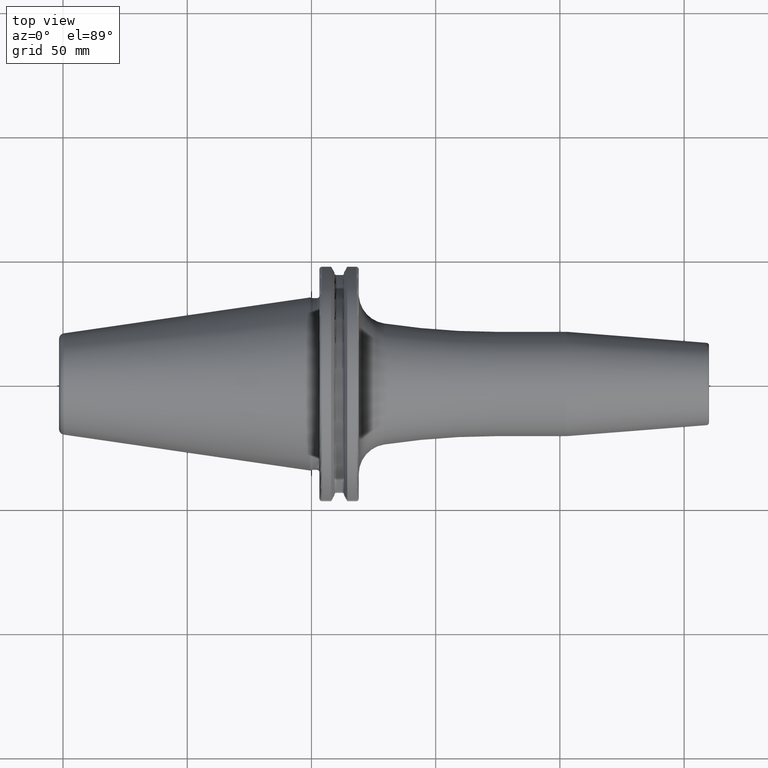
[diagram: clean part render]
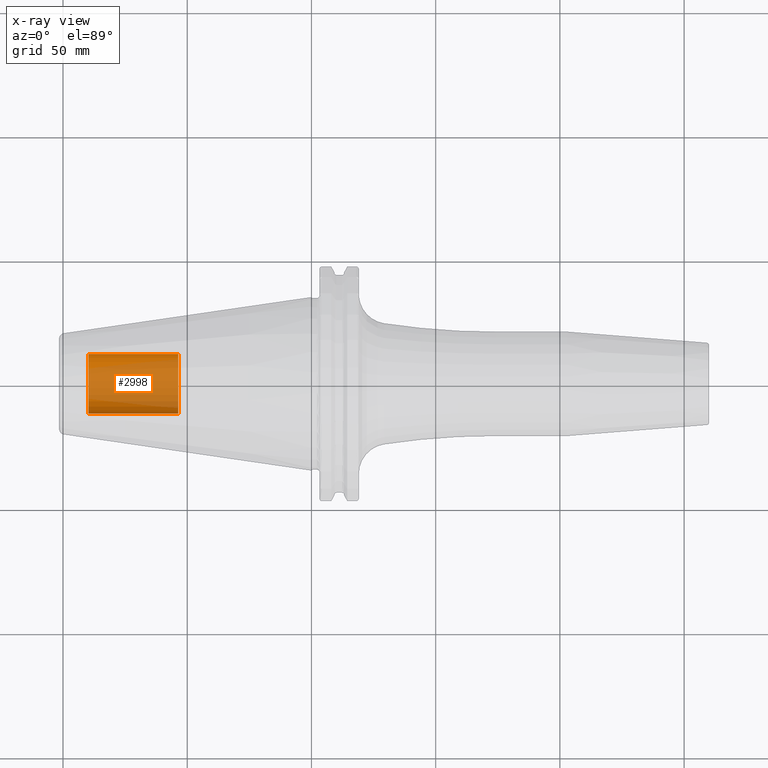
[diagram: x-ray — body ghosted, one internal face saturated and labeled with its STEP entity id]
A machine part, top view, then the same camera in x-ray: the body is ghosted and one INTERNAL B-rep face — a face not visible from any outside direction — is saturated and labeled: STEP entity #2998.
In plain terms, the highlighted cylindrical surface (edge-blend (fillet) strip) has radius 12.0032 mm, axis along (1, 0, 0).
Its self-contained STEP definition (entity closure, byte-faithful):
#2933=CARTESIAN_POINT('',(-8.985E1,0.E0,0.E0));
#2934=DIRECTION('',(-1.E0,0.E0,0.E0));
#2935=DIRECTION('',(0.E0,1.E0,0.E0));
#2936=AXIS2_PLACEMENT_3D('',#2933,#2934,#2935);
#2938=DIRECTION('',(1.E0,0.E0,0.E0));
#2939=VECTOR('',#2938,3.625E1);
#2940=CARTESIAN_POINT('',(-8.985E1,-1.200325E1,0.E0));
#2941=LINE('',#2940,#2939);
#2947=DIRECTION('',(1.E0,0.E0,0.E0));
#2948=VECTOR('',#2947,3.625E1);
#2949=CARTESIAN_POINT('',(-8.985E1,1.200325E1,0.E0));
#2950=LINE('',#2949,#2948);
#2956=CARTESIAN_POINT('',(-5.36E1,0.E0,0.E0));
#2957=DIRECTION('',(1.E0,0.E0,0.E0));
#2958=DIRECTION('',(0.E0,-1.E0,0.E0));
#2959=AXIS2_PLACEMENT_3D('',#2956,#2957,#2958);
#2971=CARTESIAN_POINT('',(-8.985E1,1.200325E1,0.E0));
#2972=CARTESIAN_POINT('',(-8.985E1,-1.200325E1,0.E0));
#2973=VERTEX_POINT('',#2971);
#2974=VERTEX_POINT('',#2972);
#2975=CARTESIAN_POINT('',(-5.36E1,1.200325E1,0.E0));
#2976=CARTESIAN_POINT('',(-5.36E1,-1.200325E1,0.E0));
#2977=VERTEX_POINT('',#2975);
#2978=VERTEX_POINT('',#2976);
#2983=CARTESIAN_POINT('',(-8.985E1,0.E0,0.E0));
#2984=DIRECTION('',(1.E0,0.E0,0.E0));
#2985=DIRECTION('',(0.E0,1.E0,0.E0));
#2986=AXIS2_PLACEMENT_3D('',#2983,#2984,#2985);
#2987=CYLINDRICAL_SURFACE('',#2986,1.200325E1);
#2989=ORIENTED_EDGE('',*,*,#2988,.T.);
#2991=ORIENTED_EDGE('',*,*,#2990,.T.);
#2993=ORIENTED_EDGE('',*,*,#2992,.T.);
#2995=ORIENTED_EDGE('',*,*,#2994,.F.);
#2996=EDGE_LOOP('',(#2989,#2991,#2993,#2995));
#2997=FACE_OUTER_BOUND('',#2996,.F.);
#2998=ADVANCED_FACE('',(#2997),#2987,.T.);
#2937=CIRCLE('',#2936,1.200325E1);
#2960=CIRCLE('',#2959,1.200325E1);
#2988=EDGE_CURVE('',#2973,#2974,#2937,.T.);
#2990=EDGE_CURVE('',#2974,#2978,#2941,.T.);
#2992=EDGE_CURVE('',#2978,#2977,#2960,.T.);
#2994=EDGE_CURVE('',#2973,#2977,#2950,.T.);